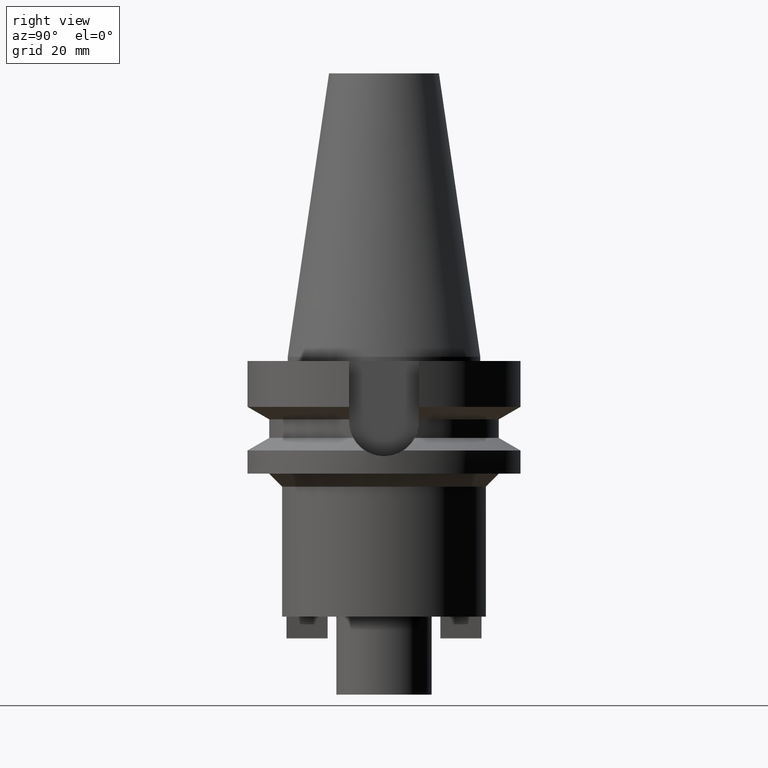
[diagram: clean part render]
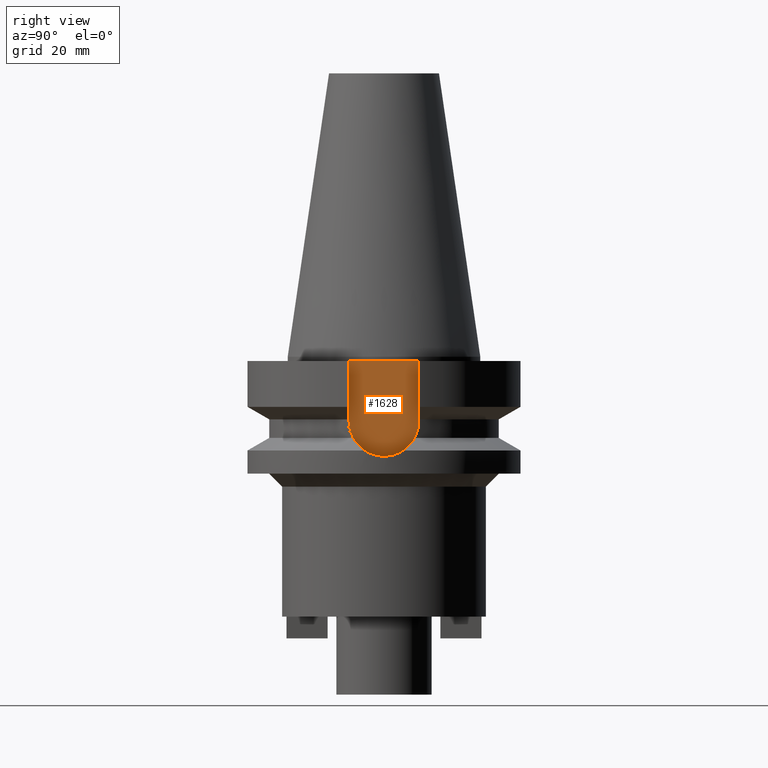
[diagram: same view with one face highlighted and labeled with its STEP entity id]
A machine part, right view. The second image highlights one B-rep face of the part: STEP entity #1628.
In plain terms, the highlighted planar face has unit normal (1, 0, 0).
Its self-contained STEP definition (entity closure, byte-faithful):
#124=DIRECTION('',(0.E0,-1.E0,0.E0));
#125=VECTOR('',#124,1.61E1);
#126=CARTESIAN_POINT('',(2.25E1,8.05E0,-1.E0));
#127=LINE('',#126,#125);
#307=DIRECTION('',(0.E0,0.E0,-1.E0));
#308=VECTOR('',#307,1.395E1);
#309=CARTESIAN_POINT('',(2.25E1,8.05E0,-1.E0));
#310=LINE('',#309,#308);
#314=CARTESIAN_POINT('',(2.25E1,0.E0,-1.495E1));
#315=DIRECTION('',(-1.E0,0.E0,0.E0));
#316=DIRECTION('',(0.E0,1.E0,0.E0));
#317=AXIS2_PLACEMENT_3D('',#314,#315,#316);
#322=CARTESIAN_POINT('',(2.25E1,0.E0,-1.495E1));
#323=DIRECTION('',(-1.E0,0.E0,0.E0));
#324=DIRECTION('',(0.E0,0.E0,-1.E0));
#325=AXIS2_PLACEMENT_3D('',#322,#323,#324);
#330=DIRECTION('',(0.E0,0.E0,1.E0));
#331=VECTOR('',#330,1.395E1);
#332=CARTESIAN_POINT('',(2.25E1,-8.05E0,-1.495E1));
#333=LINE('',#332,#331);
#1309=CARTESIAN_POINT('',(2.25E1,-8.05E0,-1.495E1));
#1310=VERTEX_POINT('',#1309);
#1311=CARTESIAN_POINT('',(2.25E1,0.E0,-2.3E1));
#1312=VERTEX_POINT('',#1311);
#1313=CARTESIAN_POINT('',(2.25E1,8.05E0,-1.495E1));
#1314=VERTEX_POINT('',#1313);
#1361=CARTESIAN_POINT('',(2.25E1,8.05E0,-1.E0));
#1362=VERTEX_POINT('',#1361);
#1363=CARTESIAN_POINT('',(2.25E1,-8.05E0,-1.E0));
#1364=VERTEX_POINT('',#1363);
#1613=CARTESIAN_POINT('',(2.25E1,0.E0,0.E0));
#1614=DIRECTION('',(1.E0,0.E0,0.E0));
#1615=DIRECTION('',(0.E0,0.E0,-1.E0));
#1616=AXIS2_PLACEMENT_3D('',#1613,#1614,#1615);
#1617=PLANE('',#1616);
#1618=ORIENTED_EDGE('',*,*,#1490,.F.);
#1620=ORIENTED_EDGE('',*,*,#1619,.T.);
#1622=ORIENTED_EDGE('',*,*,#1621,.T.);
#1624=ORIENTED_EDGE('',*,*,#1623,.T.);
#1625=ORIENTED_EDGE('',*,*,#1606,.T.);
#1626=EDGE_LOOP('',(#1618,#1620,#1622,#1624,#1625));
#1627=FACE_OUTER_BOUND('',#1626,.F.);
#318=CIRCLE('',#317,8.05E0);
#326=CIRCLE('',#325,8.05E0);
#1490=EDGE_CURVE('',#1362,#1364,#127,.T.);
#1606=EDGE_CURVE('',#1310,#1364,#333,.T.);
#1619=EDGE_CURVE('',#1362,#1314,#310,.T.);
#1621=EDGE_CURVE('',#1314,#1312,#318,.T.);
#1623=EDGE_CURVE('',#1312,#1310,#326,.T.);
#1628=ADVANCED_FACE('',(#1627),#1617,.T.);